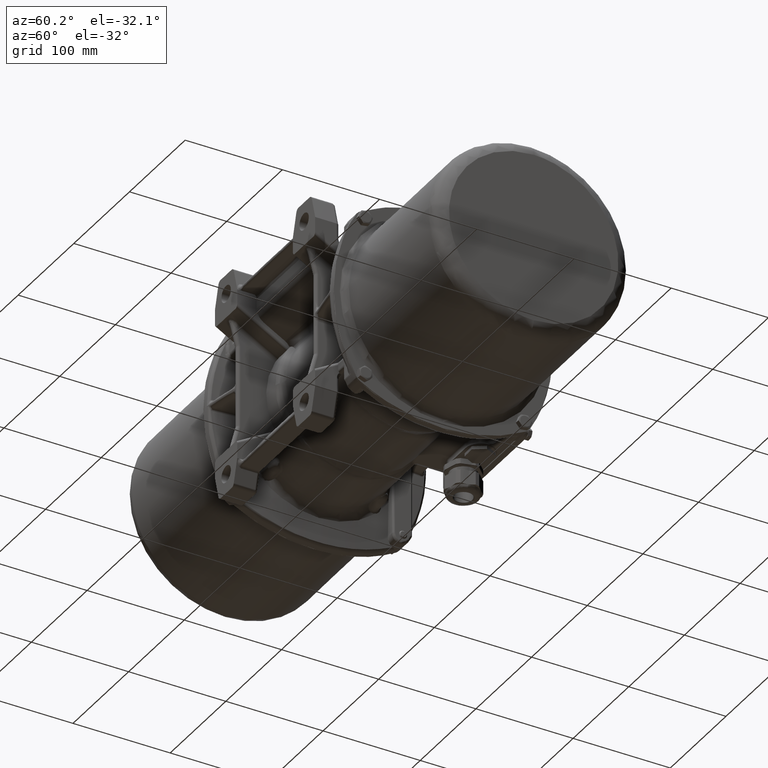
[diagram: clean part render]
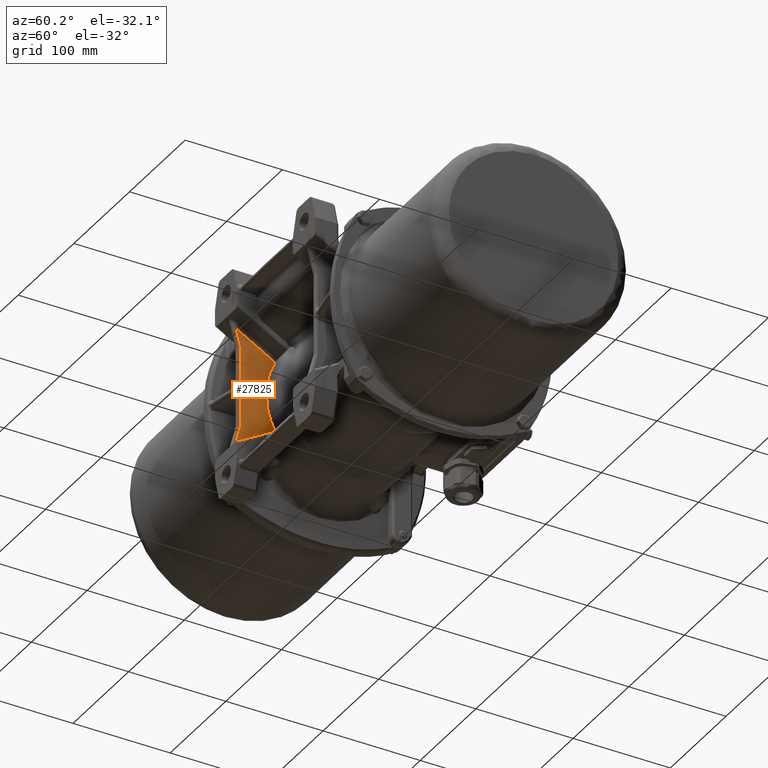
[diagram: same view with one face highlighted and labeled with its STEP entity id]
A machine part, auxiliary view. The second image highlights one B-rep face of the part: STEP entity #27825.
In plain terms, the highlighted planar face has unit normal (-1, 0, 0).
Its self-contained STEP definition (entity closure, byte-faithful):
#5306 = CARTESIAN_POINT ( 'NONE',  ( -106.9067459106444600, 675.2697873288316300, -48.97655746508615900 ) ) ;
#6062 = DIRECTION ( 'NONE',  ( -1.000000000000000000, 0.0000000000000000000, 5.848681096146304000E-017 ) ) ;
#6997 = VERTEX_POINT ( 'NONE', #145249 ) ;
#7813 = VECTOR ( 'NONE', #148348, 1000.000000000000100 ) ;
#9075 = VERTEX_POINT ( 'NONE', #80449 ) ;
#9523 = CARTESIAN_POINT ( 'NONE',  ( -106.9067459106445000, 647.0625237551111000, -21.68143608498274900 ) ) ;
#12588 = EDGE_CURVE ( 'NONE', #95725, #25672, #64651, .T. ) ;
#12648 = CARTESIAN_POINT ( 'NONE',  ( -106.9067459106445000, 647.1736063942034900, -106.3500764763738700 ) ) ;
#13886 = CARTESIAN_POINT ( 'NONE',  ( -106.9067459106444900, 646.9691613519379400, -107.9029907469890500 ) ) ;
#15004 = CARTESIAN_POINT ( 'NONE',  ( -106.9067459106445000, 647.1736063942034900, -106.3500764763738700 ) ) ;
#16912 = DIRECTION ( 'NONE',  ( 5.848681096146304000E-017, 0.0000000000000000000, 1.000000000000000000 ) ) ;
#17274 = CARTESIAN_POINT ( 'NONE',  ( -106.9067459106444600, 681.2674384986955800, -31.22165398219516100 ) ) ;
#18385 = CARTESIAN_POINT ( 'NONE',  ( -106.9067459106444600, 673.6740955237296500, -61.46547674060229800 ) ) ;
#21539 = ORIENTED_EDGE ( 'NONE', *, *, #24502, .F. ) ;
#21645 = VECTOR ( 'NONE', #55992, 1000.000000000000000 ) ;
#23047 = DIRECTION ( 'NONE',  ( 0.0000000000000000000, 0.0000000000000000000, 1.000000000000000000 ) ) ;
#24502 = EDGE_CURVE ( 'NONE', #117766, #9075, #74479, .T. ) ;
#25571 = CARTESIAN_POINT ( 'NONE',  ( -106.9067459106445000, 646.9691613519379400, -107.9029907469890500 ) ) ;
#25672 = VERTEX_POINT ( 'NONE', #150777 ) ;
#27825 = ADVANCED_FACE ( 'NONE', ( #115481 ), #147974, .F. ) ;
#28582 = CARTESIAN_POINT ( 'NONE',  ( -106.9067459106444900, 647.1650361863427200, -106.7427855532595900 ) ) ;
#29741 = CARTESIAN_POINT ( 'NONE',  ( -106.9067459106444900, 676.7475296874694100, -86.29800627842763600 ) ) ;
#35071 = CARTESIAN_POINT ( 'NONE',  ( -106.9067459106444700, 647.1650361863427200, -22.46009530611527800 ) ) ;
#41125 = ORIENTED_EDGE ( 'NONE', *, *, #64501, .F. ) ;
#42809 = CARTESIAN_POINT ( 'NONE',  ( -106.9067459106445000, 677.6966481266438200, -89.28237976924558000 ) ) ;
#42876 = LINE ( 'NONE', #115694, #136394 ) ;
#43907 = CARTESIAN_POINT ( 'NONE',  ( -106.9067459106444500, 676.7537677493207900, -42.88529912457240600 ) ) ;
#44475 = CARTESIAN_POINT ( 'NONE',  ( -106.9067459106445300, 673.8632612633445000, -70.83390980664135800 ) ) ;
#45864 = CARTESIAN_POINT ( 'NONE',  ( -106.9067459106444900, 647.1736063942034900, -22.85280438300099000 ) ) ;
#51285 = CARTESIAN_POINT ( 'NONE',  ( -106.9067459106445000, 647.0030346390281000, -107.7765739185488500 ) ) ;
#53550 = CARTESIAN_POINT ( 'NONE',  ( -106.9067459106445000, 647.1265233583061400, -107.1337928626283700 ) ) ;
#55829 = CARTESIAN_POINT ( 'NONE',  ( -106.9067459106444500, 681.2676584869585700, -97.98168180743761000 ) ) ;
#55992 = DIRECTION ( 'NONE',  ( 0.0000000000000000000, -0.8660254037844399300, -0.4999999999999977200 ) ) ;
#63470 = ORIENTED_EDGE ( 'NONE', *, *, #107033, .F. ) ;
#63992 = ORIENTED_EDGE ( 'NONE', *, *, #91738, .F. ) ;
#64245 = CARTESIAN_POINT ( 'NONE',  ( -106.9067459106433500, 682.7656018684067500, -28.42986075399096900 ) ) ;
#64501 = EDGE_CURVE ( 'NONE', #9075, #6997, #112742, .T. ) ;
#64651 = LINE ( 'NONE', #149451, #7813 ) ;
#68365 = CARTESIAN_POINT ( 'NONE',  ( -106.9067459106433500, 682.7656018684067500, -28.42986075399096900 ) ) ;
#68866 = CARTESIAN_POINT ( 'NONE',  ( -106.9067459106445000, 647.1736063942034900, -106.4809528076609800 ) ) ;
#74133 = B_SPLINE_CURVE_WITH_KNOTS ( 'NONE', 3,
 ( #13886, #51285, #144416, #53550, #28582, #68866, #15004 ),
 .UNSPECIFIED., .F., .F.,
 ( 4, 1, 1, 1, 4 ),
 ( 0.0000000000000000000, 0.2499999999999988900, 0.4999999999999996100, 0.7499999999999984500, 1.000000000000000000 ),
 .UNSPECIFIED. ) ;
#74479 = LINE ( 'NONE', #97479, #78560 ) ;
#74973 = EDGE_LOOP ( 'NONE', ( #80637, #63470, #112404, #125073, #41125, #21539, #63992, #120541 ) ) ;
#78560 = VECTOR ( 'NONE', #23047, 1000.000000000000000 ) ;
#80208 = VERTEX_POINT ( 'NONE', #135006 ) ;
#80449 = CARTESIAN_POINT ( 'NONE',  ( -106.9067459106444900, 647.1736063942034900, -22.85280438300099000 ) ) ;
#80637 = ORIENTED_EDGE ( 'NONE', *, *, #104804, .F. ) ;
#81440 = CARTESIAN_POINT ( 'NONE',  ( -106.9067459106444300, 673.8652536063998500, -58.33924026549460300 ) ) ;
#83113 = CARTESIAN_POINT ( 'NONE',  ( -106.9067459106445000, 675.6065457988767100, -47.44225015714837900 ) ) ;
#87314 = CARTESIAN_POINT ( 'NONE',  ( -106.9067459106445000, 647.1265233583061400, -22.06908799674647900 ) ) ;
#91738 = EDGE_CURVE ( 'NONE', #128423, #117766, #74133, .T. ) ;
#94507 = CARTESIAN_POINT ( 'NONE',  ( -106.9067459106444600, 675.2610051943206600, -80.18485320991540300 ) ) ;
#95725 = VERTEX_POINT ( 'NONE', #64245 ) ;
#96165 = CARTESIAN_POINT ( 'NONE',  ( -106.9067459106444700, 674.6894457479841100, -52.07644964588605100 ) ) ;
#97479 = CARTESIAN_POINT ( 'NONE',  ( -106.9067459106444900, 647.1736063942034900, -64.60179093636377000 ) ) ;
#99294 = LINE ( 'NONE', #25571, #160214 ) ;
#104804 = EDGE_CURVE ( 'NONE', #80208, #157087, #117112, .T. ) ;
#107033 = EDGE_CURVE ( 'NONE', #95725, #80208, #130117, .T. ) ;
#107532 = CARTESIAN_POINT ( 'NONE',  ( -106.9067459106444900, 675.5982880067312000, -81.72518897753857900 ) ) ;
#109761 = CARTESIAN_POINT ( 'NONE',  ( -106.9067459106445200, 679.9577134674732400, -34.07670312284508900 ) ) ;
#109951 = CARTESIAN_POINT ( 'NONE',  ( -106.9067459106445000, 642.6741958247511100, -123.9219503863230600 ) ) ;
#110300 = AXIS2_PLACEMENT_3D ( 'NONE', #109951, #6062, #16912 ) ;
#112404 = ORIENTED_EDGE ( 'NONE', *, *, #12588, .T. ) ;
#112742 = B_SPLINE_CURVE_WITH_KNOTS ( 'NONE', 3,
 ( #45864, #124832, #35071, #87314, #9523, #149740, #137841 ),
 .UNSPECIFIED., .F., .F.,
 ( 4, 1, 1, 1, 4 ),
 ( 0.0000000000000000000, 0.2499999999999988900, 0.4999999999999996100, 0.7500000000000003300, 1.000000000000000000 ),
 .UNSPECIFIED. ) ;
#115481 = FACE_OUTER_BOUND ( 'NONE', #74973, .T. ) ;
#115694 = CARTESIAN_POINT ( 'NONE',  ( -106.9067459106445000, 643.7878622178395700, -9.427120109855843900 ) ) ;
#116415 = DIRECTION ( 'NONE',  ( -0.0000000000000000000, 0.2588190451025159100, 0.9659258262890695300 ) ) ;
#117112 = LINE ( 'NONE', #133854, #21645 ) ;
#117766 = VERTEX_POINT ( 'NONE', #12648 ) ;
#120541 = ORIENTED_EDGE ( 'NONE', *, *, #122774, .F. ) ;
#121751 = CARTESIAN_POINT ( 'NONE',  ( -106.9067459106445200, 677.7009463160235300, -39.90854859554718800 ) ) ;
#122311 = CARTESIAN_POINT ( 'NONE',  ( -106.9067459106444600, 673.6730896625788300, -67.71281164174064300 ) ) ;
#122774 = EDGE_CURVE ( 'NONE', #157087, #128423, #99294, .T. ) ;
#124832 = CARTESIAN_POINT ( 'NONE',  ( -106.9067459106444900, 647.1736063942034900, -22.72192805171390600 ) ) ;
#125073 = ORIENTED_EDGE ( 'NONE', *, *, #147611, .F. ) ;
#128423 = VERTEX_POINT ( 'NONE', #166622 ) ;
#130117 = B_SPLINE_CURVE_WITH_KNOTS ( 'NONE', 3,
 ( #68365, #17274, #109761, #121751, #43907, #83113, #5306, #96165, #146129, #81440, #18385, #122311, #44475, #135330, #148353, #94507, #107532, #29741, #42809, #133689, #55829, #146669 ),
 .UNSPECIFIED., .F., .F.,
 ( 4, 2, 2, 2, 2, 2, 2, 2, 2, 2, 4 ),
 ( 2.365099801236328500E-009, 0.009370263124938969100, 0.01874052388477813500, 0.02342565426469775400, 0.02811078464461737000, 0.03748104540445663900, 0.04685130616429590600, 0.05153643654421553900, 0.05622156692413517900, 0.06559182768397435500, 0.07496208844381353800 ),
 .UNSPECIFIED. ) ;
#133689 = CARTESIAN_POINT ( 'NONE',  ( -106.9067459106445000, 679.9566386307947100, -95.12424345226540400 ) ) ;
#133854 = CARTESIAN_POINT ( 'NONE',  ( -106.9067459106445300, 662.7255526559781600, -112.3437362993960400 ) ) ;
#135006 = CARTESIAN_POINT ( 'NONE',  ( -106.9067459106433900, 682.7658446338394900, -100.7734725100030200 ) ) ;
#135330 = CARTESIAN_POINT ( 'NONE',  ( -106.9067459106445300, 674.4392667461081600, -75.51163930538727700 ) ) ;
#136394 = VECTOR ( 'NONE', #141246, 1000.000000000000100 ) ;
#137841 = CARTESIAN_POINT ( 'NONE',  ( -106.9067459106445000, 646.9691613519379400, -21.29989011238579600 ) ) ;
#138363 = CARTESIAN_POINT ( 'NONE',  ( -106.9067459106445000, 642.6778816731953200, -123.9182645379306300 ) ) ;
#141246 = DIRECTION ( 'NONE',  ( 0.0000000000000000000, -0.2588190451025186300, 0.9659258262890688700 ) ) ;
#144416 = CARTESIAN_POINT ( 'NONE',  ( -106.9067459106444900, 647.0625237551111000, -107.5214447743921100 ) ) ;
#145249 = CARTESIAN_POINT ( 'NONE',  ( -106.9067459106445000, 646.9691613519379400, -21.29989011238579600 ) ) ;
#146129 = CARTESIAN_POINT ( 'NONE',  ( -106.9067459106444700, 674.4456970211637100, -53.64592794319185000 ) ) ;
#146669 = CARTESIAN_POINT ( 'NONE',  ( -106.9067459106433900, 682.7658446338394900, -100.7734725100030200 ) ) ;
#147611 = EDGE_CURVE ( 'NONE', #6997, #25672, #42876, .T. ) ;
#147974 = PLANE ( 'NONE',  #110300 ) ;
#148348 = DIRECTION ( 'NONE',  ( 0.0000000000000000000, -0.8660254037844560300, 0.4999999999999698600 ) ) ;
#148353 = CARTESIAN_POINT ( 'NONE',  ( -106.9067459106444500, 674.6801756485277800, -77.07130420763604700 ) ) ;
#149451 = CARTESIAN_POINT ( 'NONE',  ( -106.9067459106444600, 662.7255106595949900, -16.85971287956442000 ) ) ;
#149740 = CARTESIAN_POINT ( 'NONE',  ( -106.9067459106444900, 647.0030346390281000, -21.42630694082598500 ) ) ;
#150777 = CARTESIAN_POINT ( 'NONE',  ( -106.9067459106444900, 642.6780695090345700, -5.285317334726265400 ) ) ;
#157087 = VERTEX_POINT ( 'NONE', #138363 ) ;
#160214 = VECTOR ( 'NONE', #116415, 1000.000000000000100 ) ;
#166622 = CARTESIAN_POINT ( 'NONE',  ( -106.9067459106444900, 646.9691613519379400, -107.9029907469890500 ) ) ;